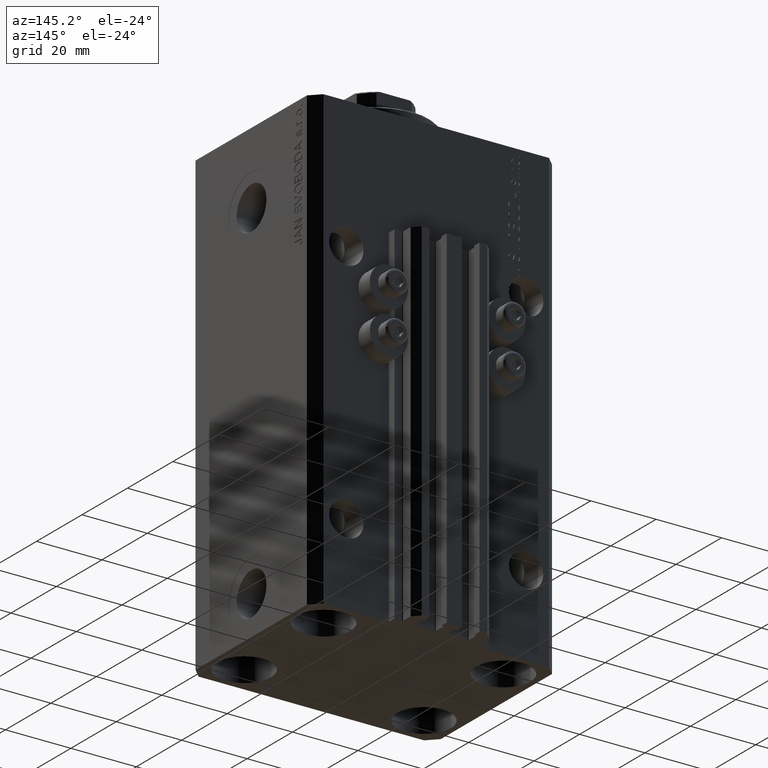
[diagram: clean part render]
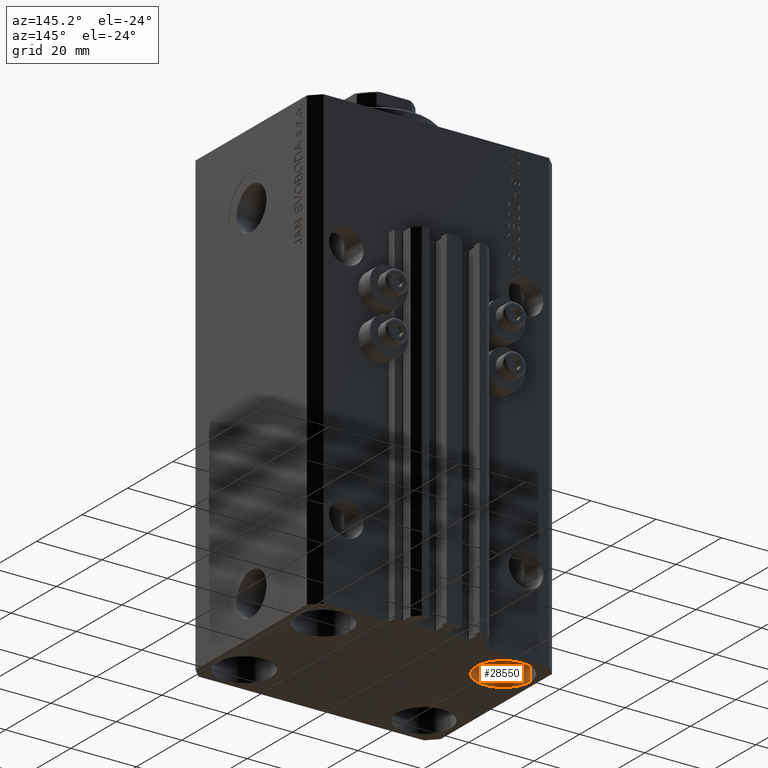
[diagram: same view with one face highlighted and labeled with its STEP entity id]
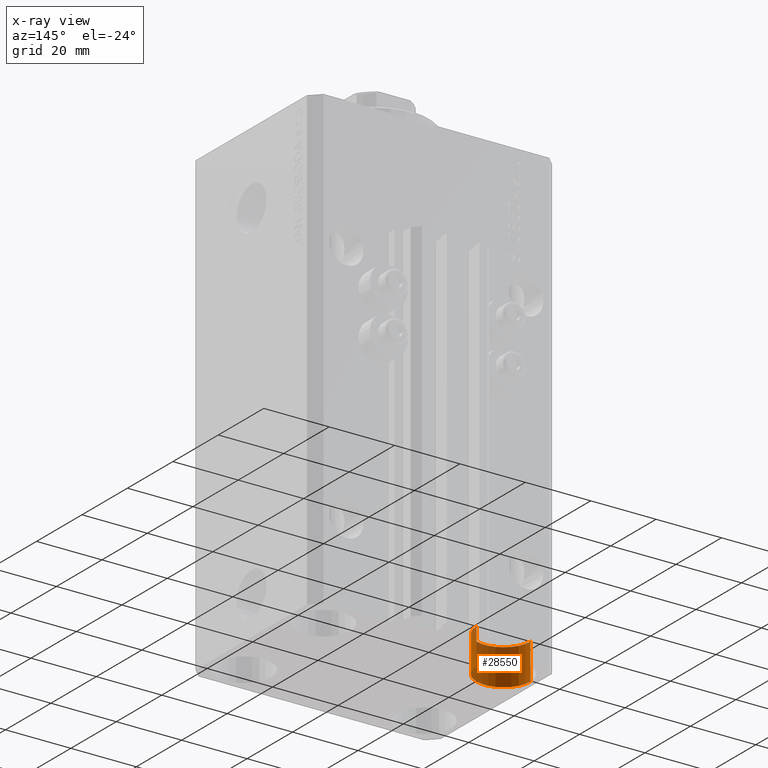
[diagram: x-ray of the same camera — body ghosted, the highlighted face saturated]
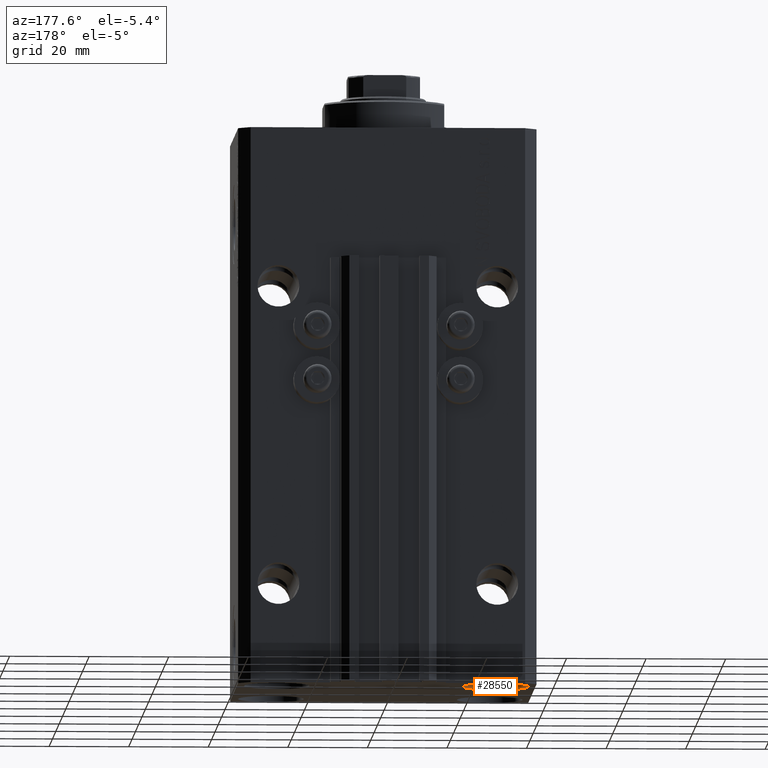
[diagram: same view with one face highlighted and labeled with its STEP entity id]
A machine part, auxiliary view. The second image highlights one B-rep face of the part: STEP entity #28550.
The next image is the same camera in x-ray: the body ghosted, the highlighted face saturated — about 16% of this face is hidden behind the body in this view.
A second angle (auxiliary view) of the same face is appended — the face is thin or edge-on in the first view.
In plain terms, the highlighted cylindrical surface (edge-blend (fillet) strip) has radius 8.25 mm, axis along (-0, -0, -1).
Its self-contained STEP definition (entity closure, byte-faithful):
#713 = CARTESIAN_POINT ( 'NONE',  ( -35.75000000000000711, 17.50000000000000000, -140.0000000000000000 ) ) ;
#2476 = ORIENTED_EDGE ( 'NONE', *, *, #11605, .F. ) ;
#3384 = DIRECTION ( 'NONE',  ( -0.000000000000000000, -0.000000000000000000, -1.000000000000000000 ) ) ;
#5995 = VECTOR ( 'NONE', #3384, 1000.000000000000000 ) ;
#6132 = AXIS2_PLACEMENT_3D ( 'NONE', #24163, #38917, #10779 ) ;
#6256 = CARTESIAN_POINT ( 'NONE',  ( -19.25000000000000355, 17.50000000000000000, -129.0000000000000000 ) ) ;
#7432 = EDGE_CURVE ( 'NONE', #27866, #23074, #36559, .T. ) ;
#10779 = DIRECTION ( 'NONE',  ( -1.000000000000000000, 0.000000000000000000, 0.000000000000000000 ) ) ;
#10985 = CARTESIAN_POINT ( 'NONE',  ( -35.75000000000000711, 17.50000000000000000, -129.0000000000000000 ) ) ;
#11605 = EDGE_CURVE ( 'NONE', #23074, #40661, #39760, .T. ) ;
#12804 = LINE ( 'NONE', #6256, #19389 ) ;
#12996 = CYLINDRICAL_SURFACE ( 'NONE', #6132, 8.250000000000000000 ) ;
#13509 = AXIS2_PLACEMENT_3D ( 'NONE', #25976, #18457, #47525 ) ;
#16080 = EDGE_LOOP ( 'NONE', ( #22542, #16680, #2476, #35724 ) ) ;
#16680 = ORIENTED_EDGE ( 'NONE', *, *, #47458, .T. ) ;
#18457 = DIRECTION ( 'NONE',  ( -0.000000000000000000, -0.000000000000000000, 1.000000000000000000 ) ) ;
#19389 = VECTOR ( 'NONE', #27595, 1000.000000000000000 ) ;
#20010 = CARTESIAN_POINT ( 'NONE',  ( -27.50000000000000355, 17.50000000000000000, -129.0000000000000000 ) ) ;
#22542 = ORIENTED_EDGE ( 'NONE', *, *, #24770, .T. ) ;
#23074 = VERTEX_POINT ( 'NONE', #713 ) ;
#24163 = CARTESIAN_POINT ( 'NONE',  ( -27.50000000000000355, 17.50000000000000000, -129.0000000000000000 ) ) ;
#24770 = EDGE_CURVE ( 'NONE', #27866, #26759, #41711, .T. ) ;
#25976 = CARTESIAN_POINT ( 'NONE',  ( -27.50000000000000355, 17.50000000000000000, -140.0000000000000000 ) ) ;
#26259 = AXIS2_PLACEMENT_3D ( 'NONE', #20010, #30911, #27535 ) ;
#26759 = VERTEX_POINT ( 'NONE', #46783 ) ;
#27535 = DIRECTION ( 'NONE',  ( 1.000000000000000000, 0.000000000000000000, 0.000000000000000000 ) ) ;
#27595 = DIRECTION ( 'NONE',  ( -0.000000000000000000, -0.000000000000000000, -1.000000000000000000 ) ) ;
#27786 = FACE_OUTER_BOUND ( 'NONE', #16080, .T. ) ;
#27866 = VERTEX_POINT ( 'NONE', #10985 ) ;
#28550 = ADVANCED_FACE ( 'NONE', ( #27786 ), #12996, .F. ) ;
#30911 = DIRECTION ( 'NONE',  ( -0.000000000000000000, -0.000000000000000000, 1.000000000000000000 ) ) ;
#31866 = CARTESIAN_POINT ( 'NONE',  ( -19.25000000000000355, 17.50000000000000000, -140.0000000000000000 ) ) ;
#35724 = ORIENTED_EDGE ( 'NONE', *, *, #7432, .F. ) ;
#36559 = LINE ( 'NONE', #40182, #5995 ) ;
#38917 = DIRECTION ( 'NONE',  ( -0.000000000000000000, -0.000000000000000000, -1.000000000000000000 ) ) ;
#39760 = CIRCLE ( 'NONE', #13509, 8.250000000000000000 ) ;
#40182 = CARTESIAN_POINT ( 'NONE',  ( -35.75000000000000711, 17.50000000000000000, -129.0000000000000000 ) ) ;
#40661 = VERTEX_POINT ( 'NONE', #31866 ) ;
#41711 = CIRCLE ( 'NONE', #26259, 8.250000000000000000 ) ;
#46783 = CARTESIAN_POINT ( 'NONE',  ( -19.25000000000000355, 17.50000000000000000, -129.0000000000000000 ) ) ;
#47458 = EDGE_CURVE ( 'NONE', #26759, #40661, #12804, .T. ) ;
#47525 = DIRECTION ( 'NONE',  ( 1.000000000000000000, 0.000000000000000000, 0.000000000000000000 ) ) ;